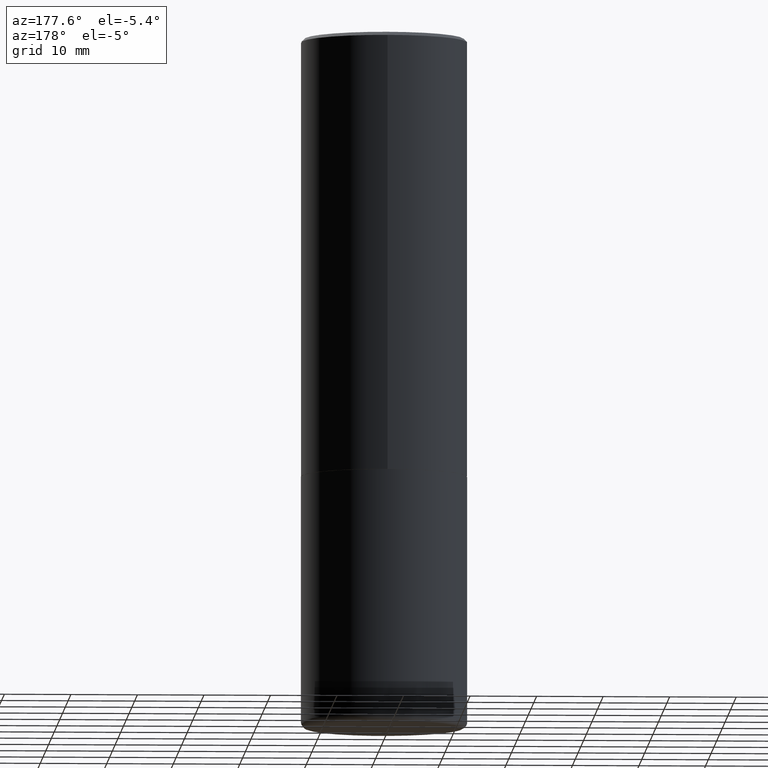
[diagram: clean part render]
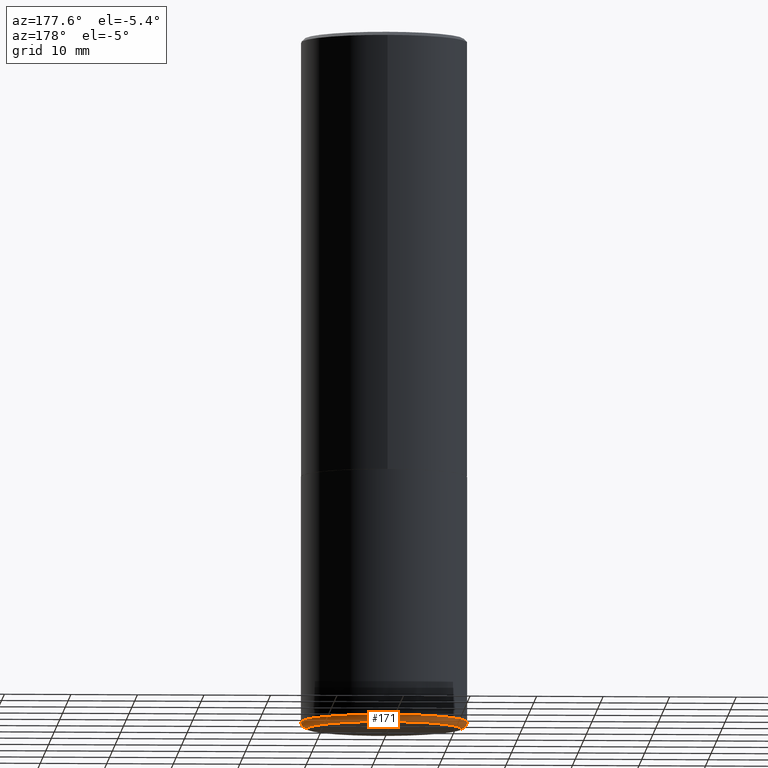
[diagram: same view with one face highlighted and labeled with its STEP entity id]
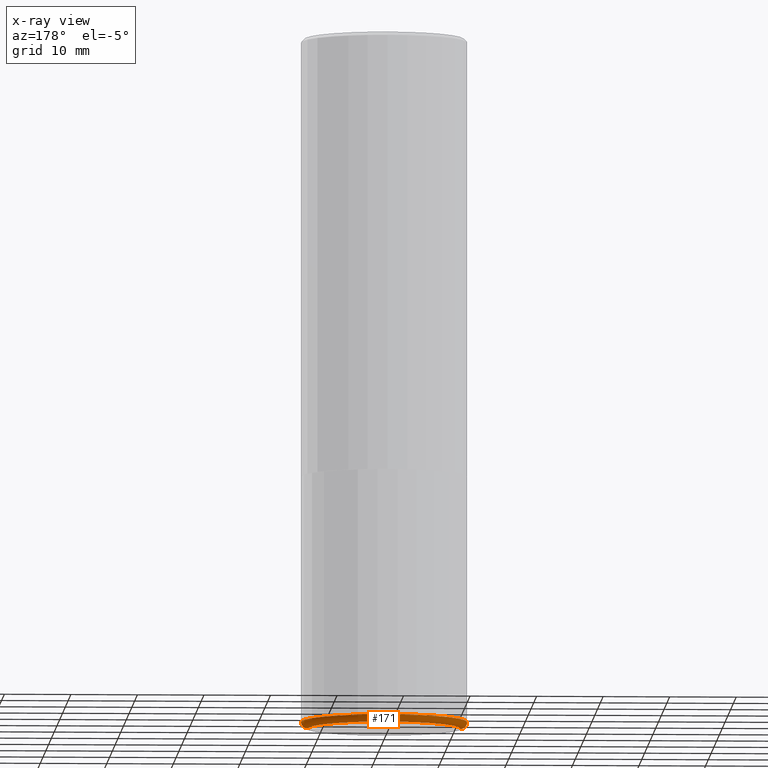
[diagram: x-ray of the same camera — body ghosted, the highlighted face saturated]
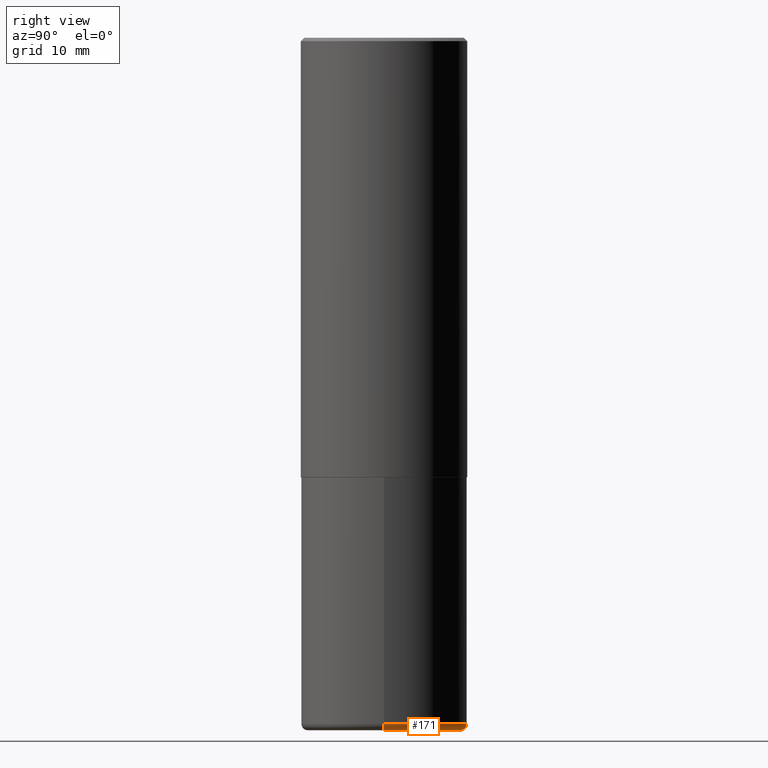
[diagram: same view with one face highlighted and labeled with its STEP entity id]
A machine part, auxiliary view. The second image highlights one B-rep face of the part: STEP entity #171.
The next image is the same camera in x-ray: the body ghosted, the highlighted face saturated — about 0% of this face is hidden behind the body in this view.
A second angle (right view) of the same face is appended — the face is thin or edge-on in the first view.
In plain terms, the highlighted toroidal blend (fillet) surface has major radius 11.4998 mm and minor (blend) radius 1.0008 mm.
Its self-contained STEP definition (entity closure, byte-faithful):
#2 = VERTEX_POINT ( 'NONE', #206 ) ;
#19 = CIRCLE ( 'NONE', #367, 0.03940000000000026814 ) ;
#20 = CARTESIAN_POINT ( 'NONE',  ( -0.4527499999999999858, -1.094132374098898721E-14, -4.055100000000000371 ) ) ;
#21 = CIRCLE ( 'NONE', #28, 0.03940000000000026814 ) ;
#28 = AXIS2_PLACEMENT_3D ( 'NONE', #20, #79, #178 ) ;
#44 = TOROIDAL_SURFACE ( 'NONE', #397, 0.4527499999999999858, 0.03940000000000030284 ) ;
#79 = DIRECTION ( 'NONE',  ( 7.105427357601001859E-15, 1.000000000000000000, -3.491481338843145583E-15 ) ) ;
#95 = EDGE_CURVE ( 'NONE', #412, #97, #19, .T. ) ;
#97 = VERTEX_POINT ( 'NONE', #294 ) ;
#107 = FACE_OUTER_BOUND ( 'NONE', #360, .T. ) ;
#134 = CARTESIAN_POINT ( 'NONE',  ( 0.4527499999999999858, -1.731984232946529805E-14, -4.055100000000000371 ) ) ;
#137 = CIRCLE ( 'NONE', #377, 0.4527499999999999858 ) ;
#140 = CARTESIAN_POINT ( 'NONE',  ( 9.916620555961347550E-29, -1.415830597714284070E-14, -4.055100000000000371 ) ) ;
#141 = DIRECTION ( 'NONE',  ( -2.445468806185136597E-29, 3.491481338843145583E-15, 1.000000000000000000 ) ) ;
#147 = EDGE_CURVE ( 'NONE', #412, #2, #137, .T. ) ;
#153 = ORIENTED_EDGE ( 'NONE', *, *, #95, .F. ) ;
#154 = ORIENTED_EDGE ( 'NONE', *, *, #147, .T. ) ;
#159 = ORIENTED_EDGE ( 'NONE', *, *, #243, .F. ) ;
#171 = ADVANCED_FACE ( 'NONE', ( #107 ), #44, .T. ) ;
#172 = CARTESIAN_POINT ( 'NONE',  ( 0.4527499999999999858, -1.745740669421572042E-14, -4.094500000000000917 ) ) ;
#178 = DIRECTION ( 'NONE',  ( -1.000000000000000000, 7.105427357601027102E-15, 0.000000000000000000 ) ) ;
#206 = CARTESIAN_POINT ( 'NONE',  ( -0.4527499999999999858, -1.087012900441945672E-14, -4.094500000000000917 ) ) ;
#209 = CARTESIAN_POINT ( 'NONE',  ( 1.001297202692504327E-28, -1.429587034189326465E-14, -4.094500000000000917 ) ) ;
#210 = CARTESIAN_POINT ( 'NONE',  ( 9.916620555961347550E-29, -1.415830597714284070E-14, -4.055100000000000371 ) ) ;
#232 = EDGE_CURVE ( 'NONE', #2, #302, #21, .T. ) ;
#239 = DIRECTION ( 'NONE',  ( -6.982962677686266711E-15, -1.000000000000000000, 3.491481338843145583E-15 ) ) ;
#243 = EDGE_CURVE ( 'NONE', #97, #302, #271, .T. ) ;
#248 = DIRECTION ( 'NONE',  ( 1.000000000000000000, -6.982962677686266711E-15, 0.000000000000000000 ) ) ;
#251 = DIRECTION ( 'NONE',  ( -2.445468806185136597E-29, 3.491481338843145583E-15, 1.000000000000000000 ) ) ;
#271 = CIRCLE ( 'NONE', #346, 0.4921499999999999209 ) ;
#290 = ORIENTED_EDGE ( 'NONE', *, *, #232, .T. ) ;
#293 = DIRECTION ( 'NONE',  ( 1.000000000000000000, -6.982962677686265133E-15, 0.000000000000000000 ) ) ;
#294 = CARTESIAN_POINT ( 'NONE',  ( 0.4921500000000000874, -1.759497105896613648E-14, -4.055100000000000371 ) ) ;
#297 = DIRECTION ( 'NONE',  ( 1.000000000000000000, -6.982962677686230423E-15, 0.000000000000000000 ) ) ;
#301 = DIRECTION ( 'NONE',  ( 1.000000000000000000, -6.982962677686270655E-15, 4.883557194083114022E-29 ) ) ;
#302 = VERTEX_POINT ( 'NONE', #382 ) ;
#346 = AXIS2_PLACEMENT_3D ( 'NONE', #210, #141, #248 ) ;
#360 = EDGE_LOOP ( 'NONE', ( #154, #290, #159, #153 ) ) ;
#367 = AXIS2_PLACEMENT_3D ( 'NONE', #134, #239, #297 ) ;
#373 = DIRECTION ( 'NONE',  ( -2.445468806185136597E-29, 3.491481338843145583E-15, 1.000000000000000000 ) ) ;
#377 = AXIS2_PLACEMENT_3D ( 'NONE', #209, #373, #293 ) ;
#382 = CARTESIAN_POINT ( 'NONE',  ( -0.4921500000000000874, -1.066136990309950544E-14, -4.055100000000000371 ) ) ;
#397 = AXIS2_PLACEMENT_3D ( 'NONE', #140, #251, #301 ) ;
#412 = VERTEX_POINT ( 'NONE', #172 ) ;